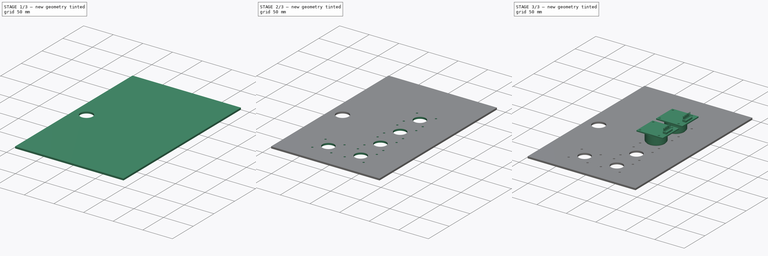
[diagram: build sequence overview — one tinted view per stage of 3, left to right]
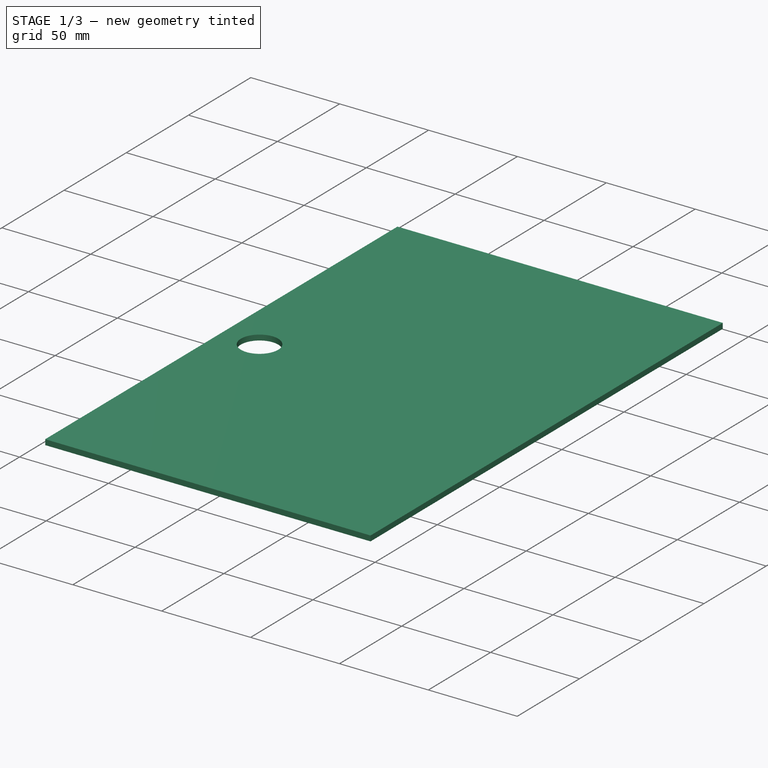
[diagram: stage 1 of 3 — iso view after this stage's code; geometry added in this stage tinted green]
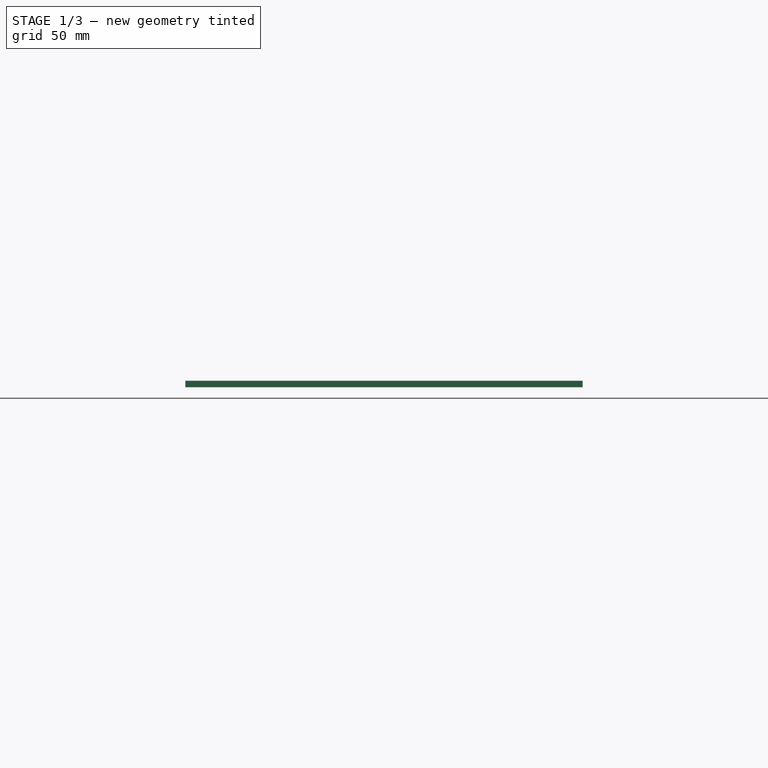
[diagram: stage 1 of 3 — front view after this stage's code; geometry added in this stage tinted green]
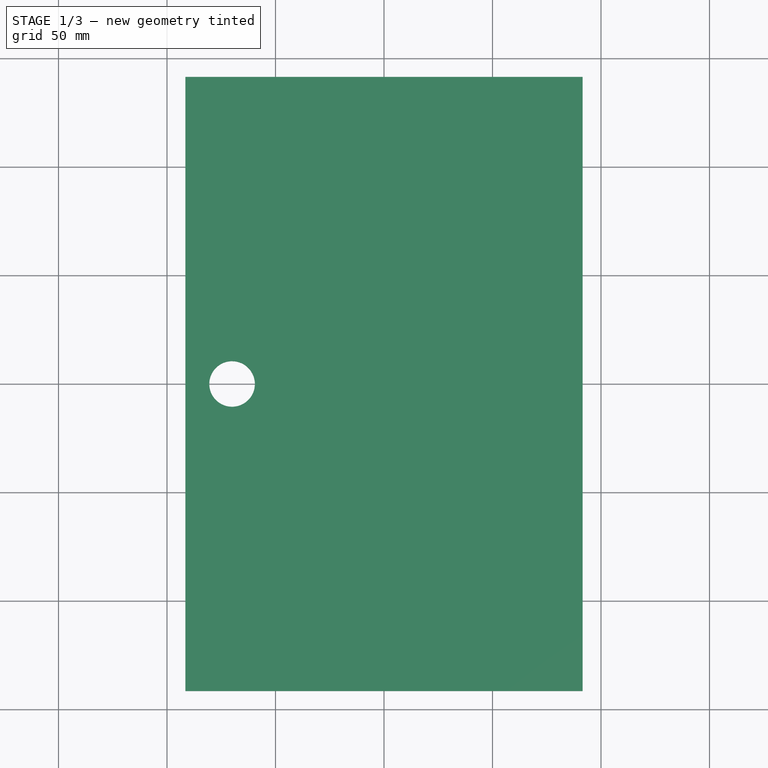
[diagram: stage 1 of 3 — top view after this stage's code; geometry added in this stage tinted green]
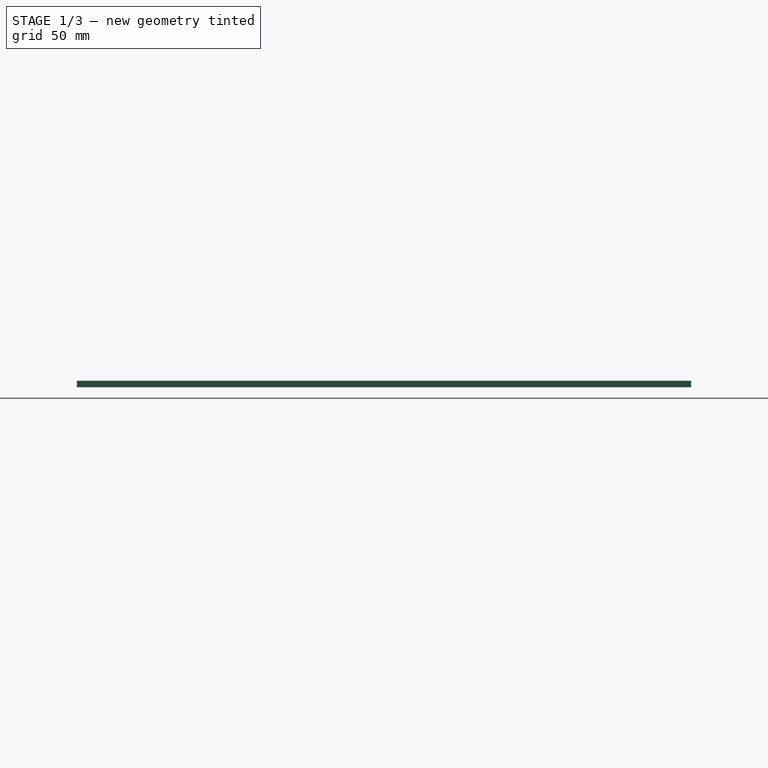
[diagram: stage 1 of 3 — right view after this stage's code; geometry added in this stage tinted green]
FCSTD DOCUMENT  (FreeCAD 0.16R6712 (Git))
Label: tapa
License: All rights reserved
LicenseURL: http://en.wikipedia.org/wiki/All_rights_reserved
objects: Part::Feature×4, Sketcher::SketchObject×3, PartDesign::Pocket×2, Part::MultiFuse×2, PartDesign::Pad×1, Part::Part2DObjectPython×1
note: 16 computed .brp shape members not serialized (recipe doc carries the construction recipe); baked Part::Feature solids carry a one-line shape summary decoded from their .brp

FEATURE [Sketcher::SketchObject] Sketch
  sketch-geometry (4):
    g0: LineSegment StartX=-91.5 StartY=141.5 StartZ=0 EndX=91.5 EndY=141.5 EndZ=0
    g1: LineSegment StartX=91.5 StartY=141.5 StartZ=0 EndX=91.5 EndY=-141.5 EndZ=0
    g2: LineSegment StartX=91.5 StartY=-141.5 StartZ=0 EndX=-91.5 EndY=-141.5 EndZ=0
    g3: LineSegment StartX=-91.5 StartY=-141.5 StartZ=0 EndX=-91.5 EndY=141.5 EndZ=0
  constraints (12):
    c: Coincident(g0,g1)
    c: Coincident(g1,g2)
    c: Coincident(g2,g3)
    c: Coincident(g3,g0)
    c: Horizontal(g2)
    c: Vertical(g3)
    c: Equal(g0,g2)
    c: Equal(g3,g1)
    c: DistanceY(g1,g1) = 283
    c: Symmetric(g0,g1,g-1)
    c: Symmetric(g0,g0,g-2)
    c: DistanceX(g2,g2) = 183
FEATURE [PartDesign::Pad] Pad
  Length = 3
  Length2 = 100
  Sketch = -> Sketch
  Type = 0
FEATURE [Sketcher::SketchObject] Sketch001
  Placement = pos=(0,0,3) rot=(0,0,1;0rad)
  Support = -> Pad [Face6]
  sketch-geometry (1):
    g0: Circle CenterX=-70 CenterY=0 CenterZ=0 NormalX=0 NormalY=0 NormalZ=1 Radius=10.5
  constraints (3):
    c: PointOnObject(g0,g-1)
    c: DistanceX(g0,g-1) = 70
    c: Radius(g0) = 10.5
FEATURE [PartDesign::Pocket] Pocket
  Length = 3
  Sketch = -> Sketch001
  Type = 0
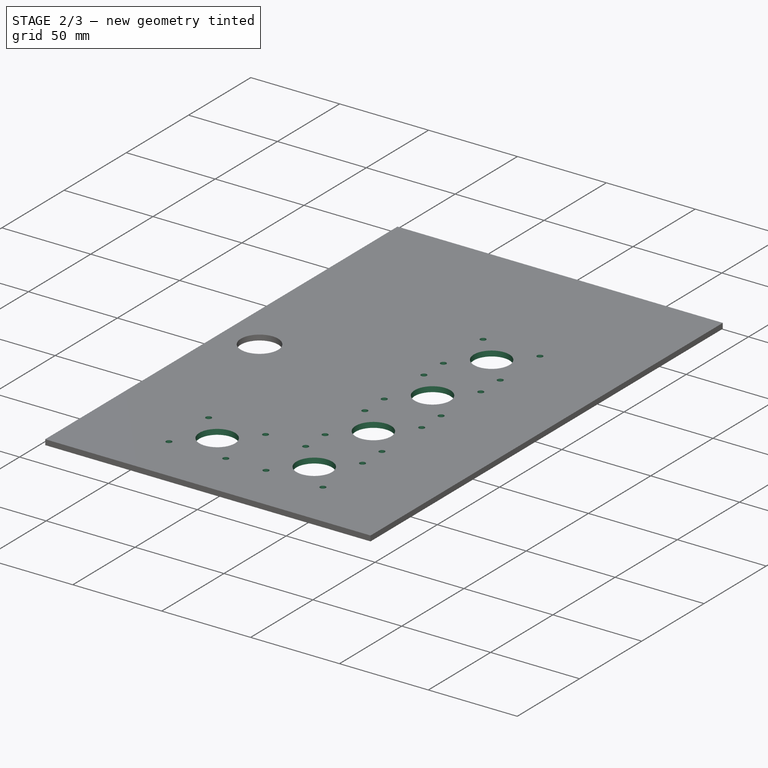
[diagram: stage 2 of 3 — iso view after this stage's code; geometry added in this stage tinted green]
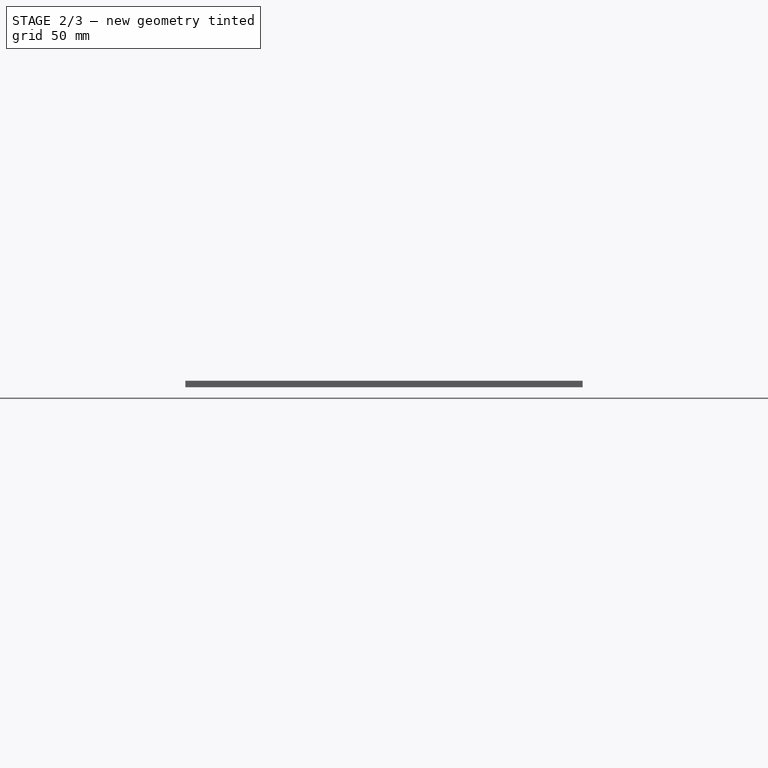
[diagram: stage 2 of 3 — front view after this stage's code; geometry added in this stage tinted green]
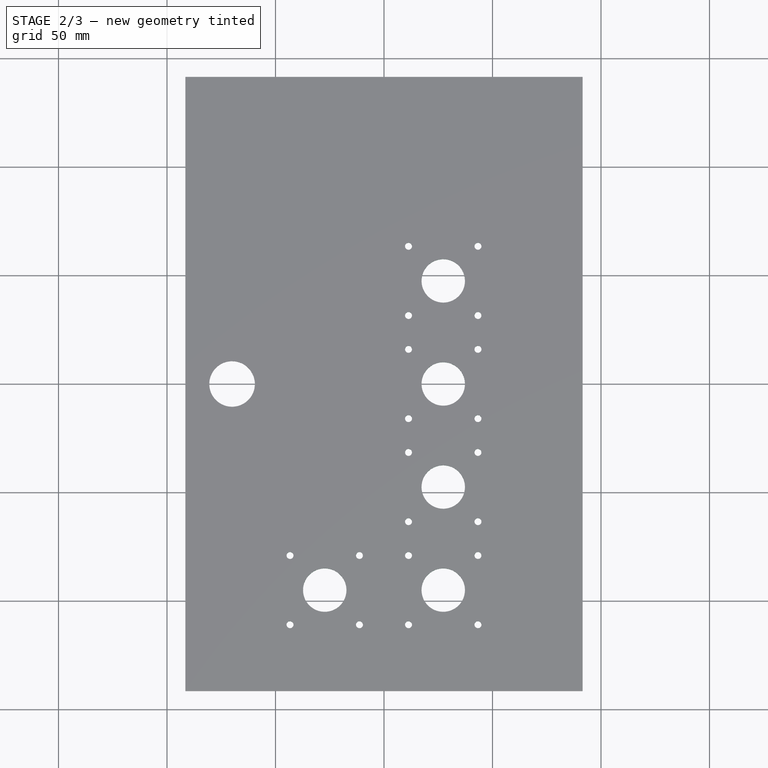
[diagram: stage 2 of 3 — top view after this stage's code; geometry added in this stage tinted green]
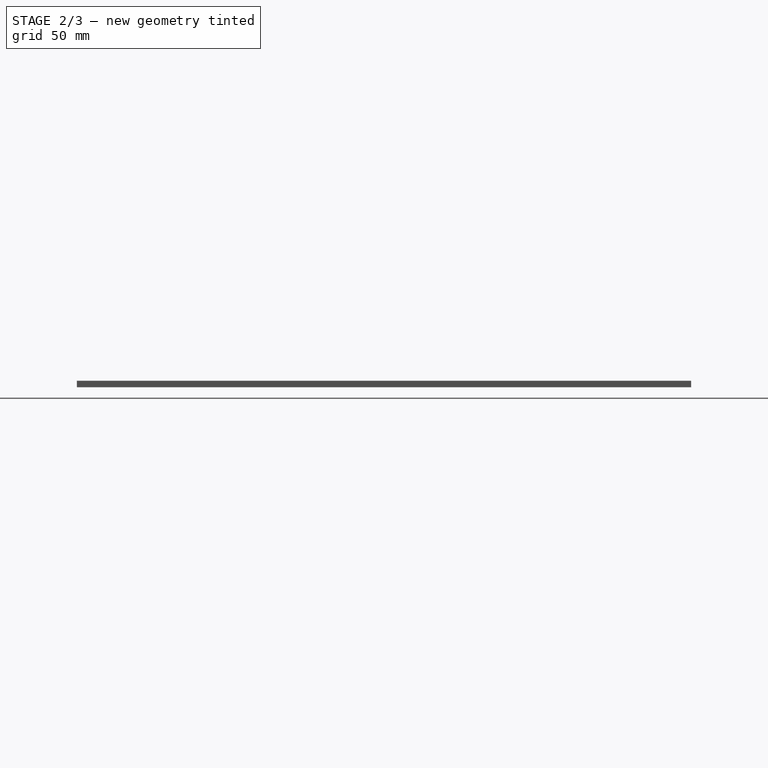
[diagram: stage 2 of 3 — right view after this stage's code; geometry added in this stage tinted green]
FEATURE [Sketcher::SketchObject] Sketch002
  Placement = pos=(0,0,3) rot=(0,0,1;0rad)
  Support = -> Pocket [Face5]
  sketch-geometry (44):
    g0: LineSegment [constr] StartX=27.3 StartY=95 StartZ=0 EndX=27.3 EndY=-95 EndZ=0
    g1: LineSegment [constr] StartX=11.3 StartY=15.95 StartZ=0 EndX=43.3 EndY=15.95 EndZ=0
    g2: LineSegment [constr] StartX=43.3 StartY=-15.95 StartZ=0 EndX=11.3 EndY=-15.95 EndZ=0
    g3: Circle CenterX=11.3 CenterY=15.95 CenterZ=0 NormalX=0 NormalY=0 NormalZ=1 Radius=1.6
    g4: Circle CenterX=43.3 CenterY=15.95 CenterZ=0 NormalX=0 NormalY=0 NormalZ=1 Radius=1.6
    g5: Circle CenterX=43.3 CenterY=-15.95 CenterZ=0 NormalX=0 NormalY=0 NormalZ=1 Radius=1.6
    g6: Circle CenterX=11.3 CenterY=-15.95 CenterZ=0 NormalX=0 NormalY=0 NormalZ=1 Radius=1.6
    g7: Circle CenterX=27.3 CenterY=0 CenterZ=0 NormalX=0 NormalY=0 NormalZ=1 Radius=10
    g8: LineSegment [constr] StartX=11.3 StartY=-79.05 StartZ=0 EndX=43.3 EndY=-79.05 EndZ=0
    g9: LineSegment [constr] StartX=43.3 StartY=-110.95 StartZ=0 EndX=11.3 EndY=-110.95 EndZ=0
    g10: Circle CenterX=11.3 CenterY=-79.05 CenterZ=0 NormalX=0 NormalY=0 NormalZ=1 Radius=1.6
    g11: Circle CenterX=43.3 CenterY=-79.05 CenterZ=0 NormalX=0 NormalY=0 NormalZ=1 Radius=1.6
    g12: Circle CenterX=43.3 CenterY=-110.95 CenterZ=0 NormalX=0 NormalY=0 NormalZ=1 Radius=1.6
    g13: Circle CenterX=11.3 CenterY=-110.95 CenterZ=0 NormalX=0 NormalY=0 NormalZ=1 Radius=1.6
    g14: Circle CenterX=27.3 CenterY=-95 CenterZ=0 NormalX=0 NormalY=0 NormalZ=1 Radius=10
    g15: LineSegment [constr] StartX=11.3 StartY=-79.05 StartZ=0 EndX=11.3 EndY=-110.95 EndZ=0
    g16: LineSegment [constr] StartX=43.3 StartY=-79.05 StartZ=0 EndX=43.3 EndY=-110.95 EndZ=0
    g17: LineSegment [constr] StartX=-11.3 StartY=-79.05 StartZ=0 EndX=-43.3 EndY=-79.05 EndZ=0
    g18: LineSegment [constr] StartX=-43.3 StartY=-110.95 StartZ=0 EndX=-11.3 EndY=-110.95 EndZ=0
    g19: Circle CenterX=-11.3 CenterY=-79.05 CenterZ=0 NormalX=0 NormalY=0 NormalZ=1 Radius=1.6
    g20: Circle CenterX=-43.3 CenterY=-79.05 CenterZ=0 NormalX=0 NormalY=0 NormalZ=1 Radius=1.6
    g21: Circle CenterX=-43.3 CenterY=-110.95 CenterZ=0 NormalX=0 NormalY=0 NormalZ=1 Radius=1.6
    g22: Circle CenterX=-11.3 CenterY=-110.95 CenterZ=0 NormalX=0 NormalY=0 NormalZ=1 Radius=1.6
    g23: Circle CenterX=-27.3 CenterY=-95 CenterZ=0 NormalX=0 NormalY=0 NormalZ=1 Radius=10
    g24: LineSegment [constr] StartX=-11.3 StartY=-79.05 StartZ=0 EndX=-11.3 EndY=-110.95 EndZ=0
    g25: LineSegment [constr] StartX=-43.3 StartY=-79.05 StartZ=0 EndX=-43.3 EndY=-110.95 EndZ=0
    g26: LineSegment [constr] StartX=11.3 StartY=-31.55 StartZ=0 EndX=43.3 EndY=-31.55 EndZ=0
    g27: LineSegment [constr] StartX=43.3 StartY=-63.45 StartZ=0 EndX=11.3 EndY=-63.45 EndZ=0
    g28: Circle CenterX=11.3 CenterY=-31.55 CenterZ=0 NormalX=0 NormalY=0 NormalZ=1 Radius=1.6
    g29: Circle CenterX=43.3 CenterY=-31.55 CenterZ=0 NormalX=0 NormalY=0 NormalZ=1 Radius=1.6
    g30: Circle CenterX=43.3 CenterY=-63.45 CenterZ=0 NormalX=0 NormalY=0 NormalZ=1 Radius=1.6
    g31: Circle CenterX=11.3 CenterY=-63.45 CenterZ=0 NormalX=0 NormalY=0 NormalZ=1 Radius=1.6
    g32: Circle CenterX=27.3 CenterY=-47.5 CenterZ=0 NormalX=0 NormalY=0 NormalZ=1 Radius=10
    g33: LineSegment [constr] StartX=11.3 StartY=-31.55 StartZ=0 EndX=11.3 EndY=-63.45 EndZ=0
    g34: LineSegment [constr] StartX=43.3 StartY=-31.55 StartZ=0 EndX=43.3 EndY=-63.45 EndZ=0
    g35: LineSegment [constr] StartX=11.3 StartY=31.55 StartZ=0 EndX=43.3 EndY=31.55 EndZ=0
    g36: LineSegment [constr] StartX=43.3 StartY=63.45 StartZ=0 EndX=11.3 EndY=63.45 EndZ=0
    g37: Circle CenterX=11.3 CenterY=31.55 CenterZ=0 NormalX=0 NormalY=0 NormalZ=1 Radius=1.6
    g38: Circle CenterX=43.3 CenterY=31.55 CenterZ=0 NormalX=0 NormalY=0 NormalZ=1 Radius=1.6
    g39: Circle CenterX=43.3 CenterY=63.45 CenterZ=0 NormalX=0 NormalY=0 NormalZ=1 Radius=1.6
    g40: Circle CenterX=11.3 CenterY=63.45 CenterZ=0 NormalX=0 NormalY=0 NormalZ=1 Radius=1.6
    g41: Circle CenterX=27.3 CenterY=47.5 CenterZ=0 NormalX=0 NormalY=0 NormalZ=1 Radius=10
    g42: LineSegment [constr] StartX=11.3 StartY=31.55 StartZ=0 EndX=11.3 EndY=63.45 EndZ=0
    g43: LineSegment [constr] StartX=43.3 StartY=31.55 StartZ=0 EndX=43.3 EndY=63.45 EndZ=0
  constraints (112):
    c: DistanceY(g0,g0) = 190
    c: Symmetric(g0,g0,g-1)
    c: DistanceX(g-1,g0) = 27.3
    c: Horizontal(g2)
    c: DistanceX(g1,g1) = 32
    c: Symmetric(g1,g1,g0)
    c: Symmetric(g1,g2,g-1)
    c: Coincident(g3,g1)
    c: Coincident(g4,g1)
    c: Coincident(g6,g2)
    c: Equal(g6,g3)
    c: Equal(g3,g4)
    c: Equal(g4,g5)
    c: Radius(g3) = 1.6
    c: DistanceY(g2,g1) = 31.9
    c: Equal(g1,g2)
    c: Coincident(g5,g2)
    c: PointOnObject(g7,g-1)
    c: Radius(g7) = 10
    c: PointOnObject(g7,g0)
    c: Horizontal(g9)
    c: Equal(g1,g8) = 32
    c: Coincident(g10,g8)
    c: Coincident(g11,g8)
    c: Coincident(g13,g9)
    c: Equal(g13,g10)
    c: Equal(g10,g11)
    c: Equal(g11,g12)
    c: Equal(g3,g10) = 1.6
    c: DistanceY(g9,g8) = 31.9
    c: Equal(g8,g9)
    c: Coincident(g12,g9)
    c: Equal(g7,g14) = 10
    c: PointOnObject(g14,g0)
    c: Coincident(g15,g8)
    c: Coincident(g15,g9)
    c: Vertical(g15)
    c: Coincident(g16,g8)
    c: Coincident(g16,g9)
    c: Equal(g16,g15)
    c: DistanceY(g14,g8) = 15.95
    c: Symmetric(g8,g8,g0)
    c: Horizontal(g18)
    c: Coincident(g19,g17)
    c: Coincident(g20,g17)
    c: Coincident(g22,g18)
    c: Equal(g22,g19)
    c: Equal(g19,g20)
    c: Equal(g17,g18)
    c: Coincident(g21,g18)
    c: Coincident(g24,g17)
    c: Coincident(g24,g18)
    c: Vertical(g24)
    c: Coincident(g25,g17)
    c: Coincident(g25,g18)
    c: Equal(g25,g24)
    c: Symmetric(g17,g8,g-2)
    c: Symmetric(g18,g9,g-2)
    c: Equal(g17,g8)
    c: Equal(g23,g14)
    c: Equal(g22,g21)
    c: Equal(g19,g10)
    c: Symmetric(g23,g14,g-2)
    c: Coincident(g0,g14)
    c: Horizontal(g27)
    c: Coincident(g28,g26)
    c: Coincident(g29,g26)
    c: Coincident(g31,g27)
    c: Equal(g31,g28)
    c: Equal(g28,g29)
    c: DistanceY(g27,g26) = 31.9
    c: Equal(g26,g27)
    c: Coincident(g30,g27)
    c: Coincident(g33,g26)
    c: Coincident(g33,g27)
    c: Vertical(g33)
    c: Coincident(g34,g26)
    c: Coincident(g34,g27)
    c: Equal(g34,g33)
    c: DistanceY(g32,g26) = 15.95
    c: PointOnObject(g32,g0)
    c: Symmetric(g26,g26,g0)
    c: Equal(g26,g2)
    c: Equal(g7,g32)
    c: Equal(g29,g30)
    c: Equal(g31,g6)
    c: DistanceY(g32,g7) = 47.5
    c: Horizontal(g36)
    c: Coincident(g37,g35)
    c: Coincident(g38,g35)
    c: Coincident(g40,g36)
    c: Equal(g40,g37)
    c: Equal(g35,g36)
    c: Coincident(g39,g36)
    c: Coincident(g42,g35)
    c: Coincident(g42,g36)
    c: Vertical(g42)
    c: Coincident(g43,g35)
    c: Coincident(g43,g36)
    c: Equal(g43,g42)
    c: Equal(g38,g39)
    c: Equal(g41,g7)
    c: Equal(g39,g4)
    c: Symmetric(g35,g35,g0)
    c: PointOnObject(g41,g0)
    c: Equal(g36,g35)
    c: Equal(g35,g1)
    c: Equal(g42,g43)
    c: Equal(g43,g34)
    c: Symmetric(g35,g26,g-1)
    c: Equal(g39,g40)
    c: Symmetric(g41,g32,g-1)
FEATURE [PartDesign::Pocket] Pocket001
  Length = 3
  Sketch = -> Sketch002
  Type = 0
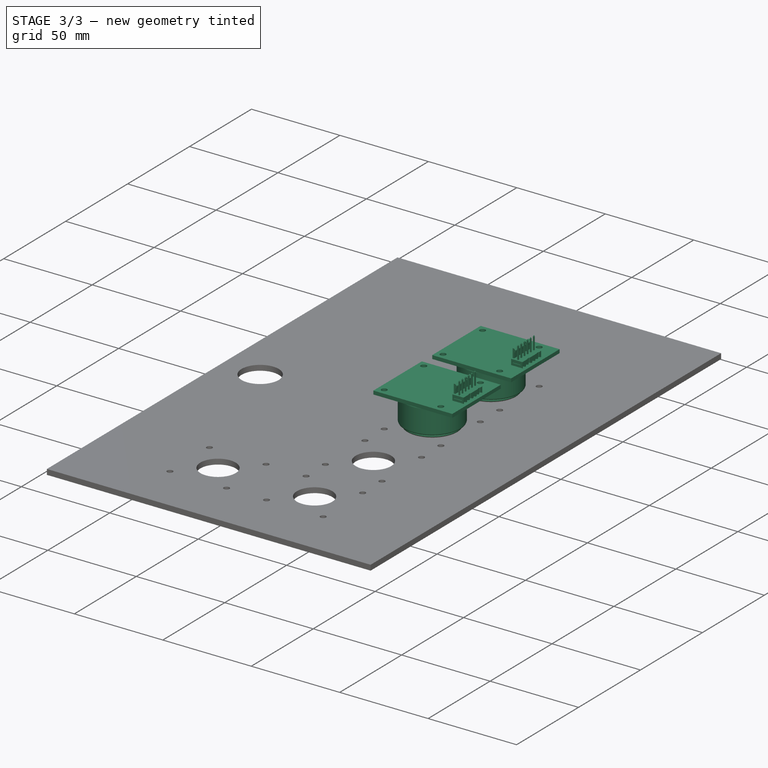
[diagram: stage 3 of 3 — iso view after this stage's code; geometry added in this stage tinted green]
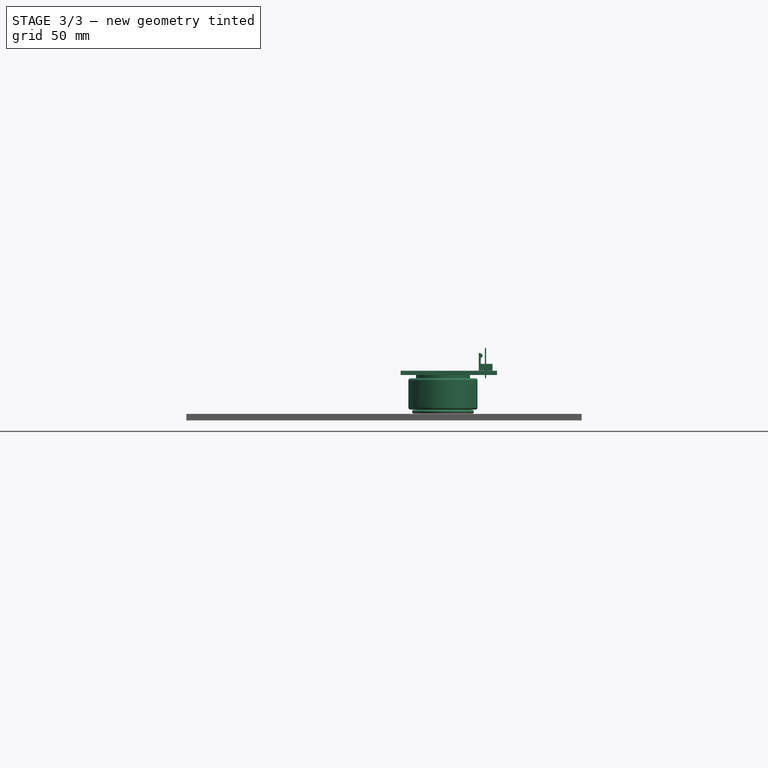
[diagram: stage 3 of 3 — front view after this stage's code; geometry added in this stage tinted green]
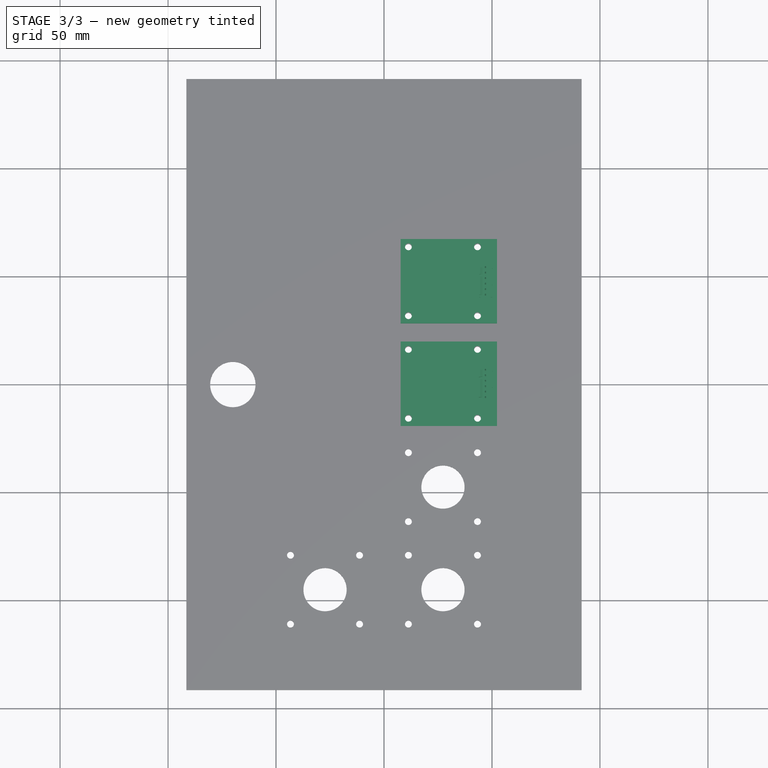
[diagram: stage 3 of 3 — top view after this stage's code; geometry added in this stage tinted green]
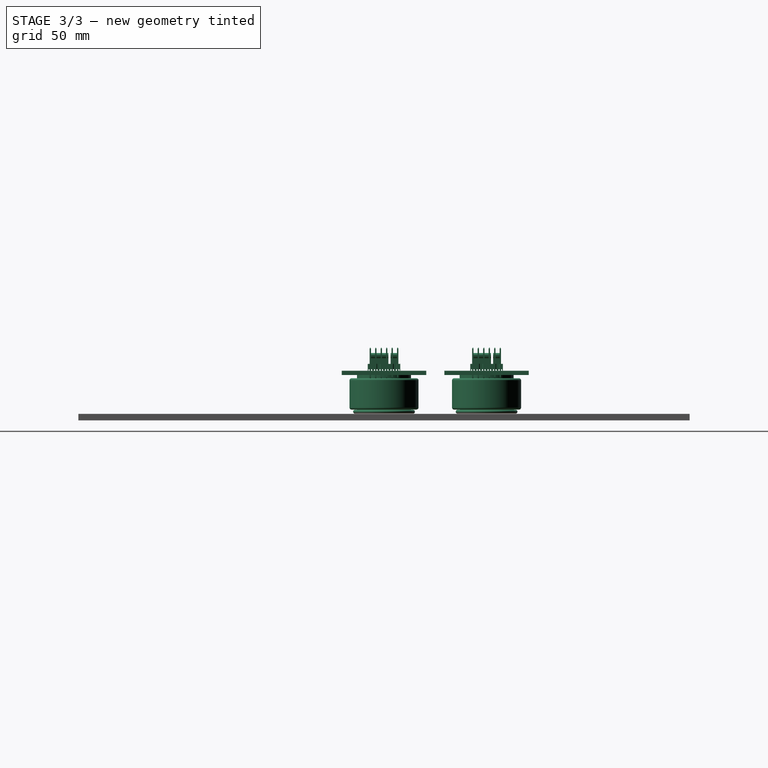
[diagram: stage 3 of 3 — right view after this stage's code; geometry added in this stage tinted green]
FEATURE [Part::Feature] Part__Feature  label="Fusion002"
  shape: bbox 44.6 x 39.1 x 30.18 mm, 214 faces (baked)
FEATURE [Part::Feature] Part__Feature001  label="Fusion003"
  shape: bbox 30.96 x 30.96 x 1.8 mm, 2 faces (baked)
FEATURE [Part::MultiFuse] Fusion
  Placement = pos=(30,0,23) rot=(1,0,0;3.14159rad)
  Shapes = -> [Part__Feature001,Part__Feature]
FEATURE [Part::Feature] Part__Feature002  label="Fusion004"
  shape: bbox 44.6 x 39.1 x 30.18 mm, 214 faces (baked)
FEATURE [Part::Feature] Part__Feature003  label="Fusion005"
  shape: bbox 30.96 x 30.96 x 1.8 mm, 2 faces (baked)
FEATURE [Part::MultiFuse] Fusion001  label="Fusion006"
  Placement = pos=(30,47.5,23) rot=(1,0,0;3.14159rad)
  Shapes = -> [Part__Feature002,Part__Feature003]
FEATURE [Part::Part2DObjectPython] Shape2DView  # Draft 2D object (typed FeaturePython)
  Base = -> Pocket001
  HiddenLines = false
  Projection = (0,0,1)
  ProjectionMode = 0
  SegmentLength = 0.05
  Tessellation = false
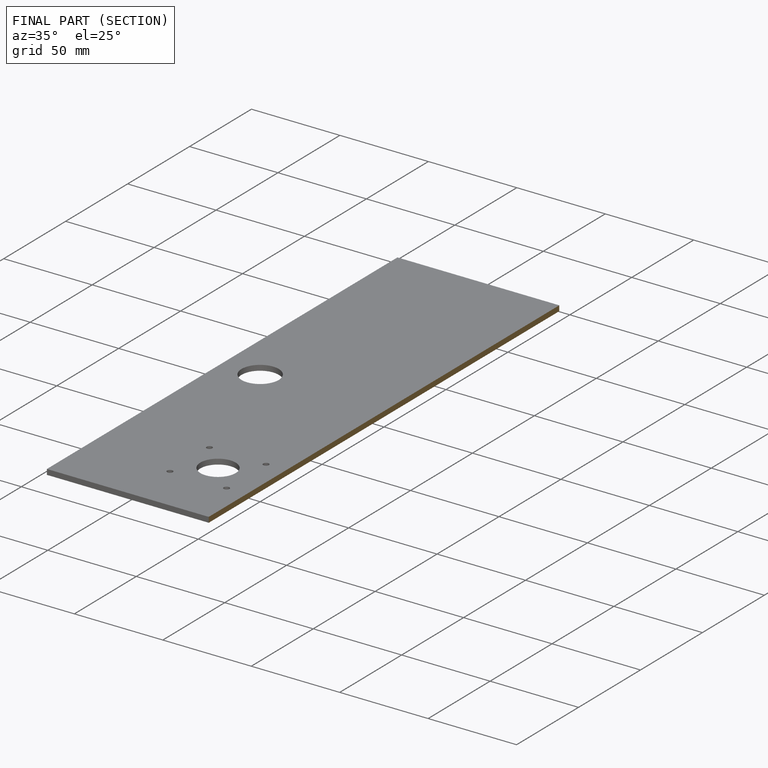
[diagram: finished part — half-section view (interior)]
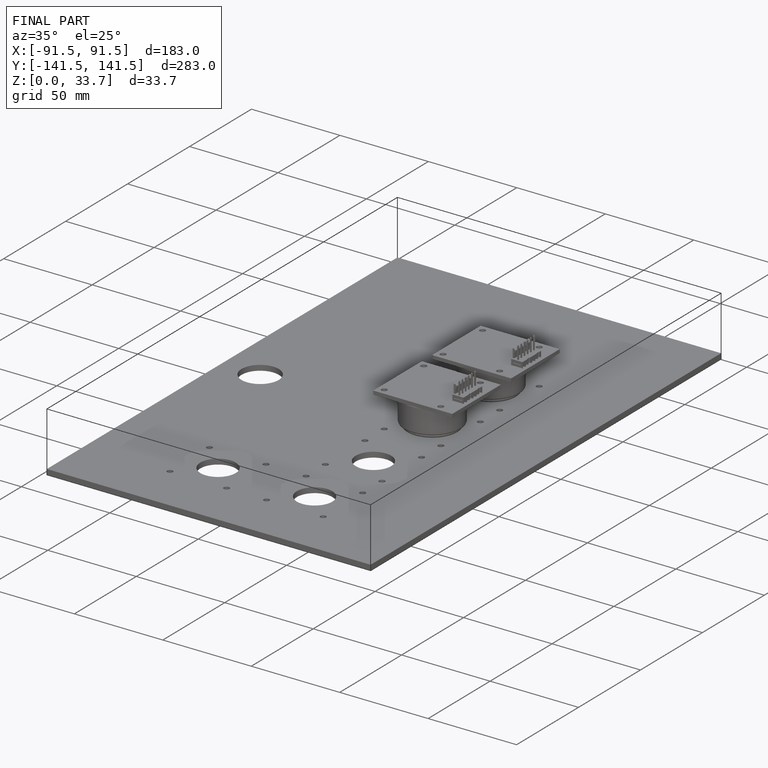
[diagram: finished part — iso view with bounding-box wireframe]
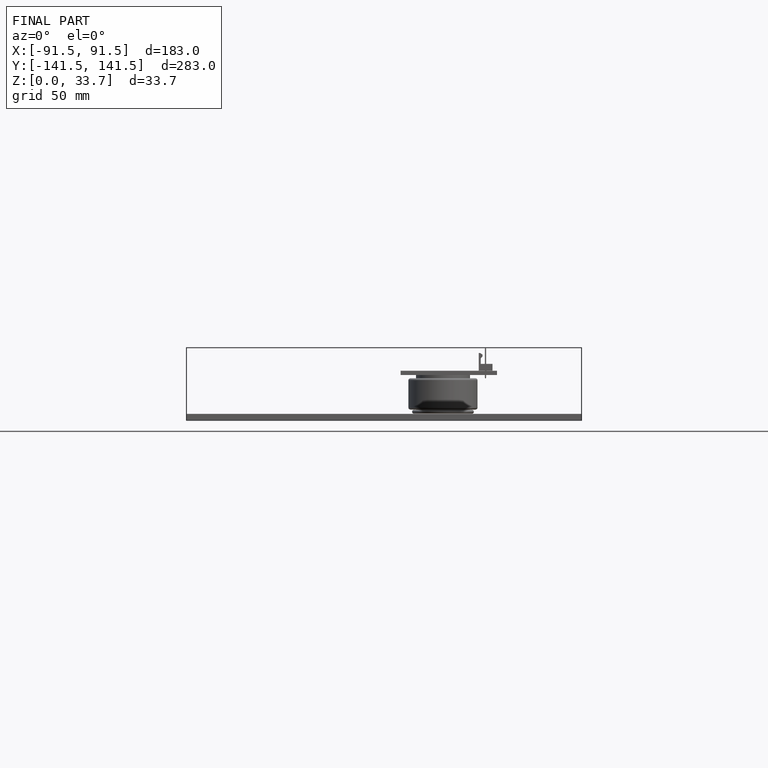
[diagram: finished part — front view with bounding-box wireframe]
